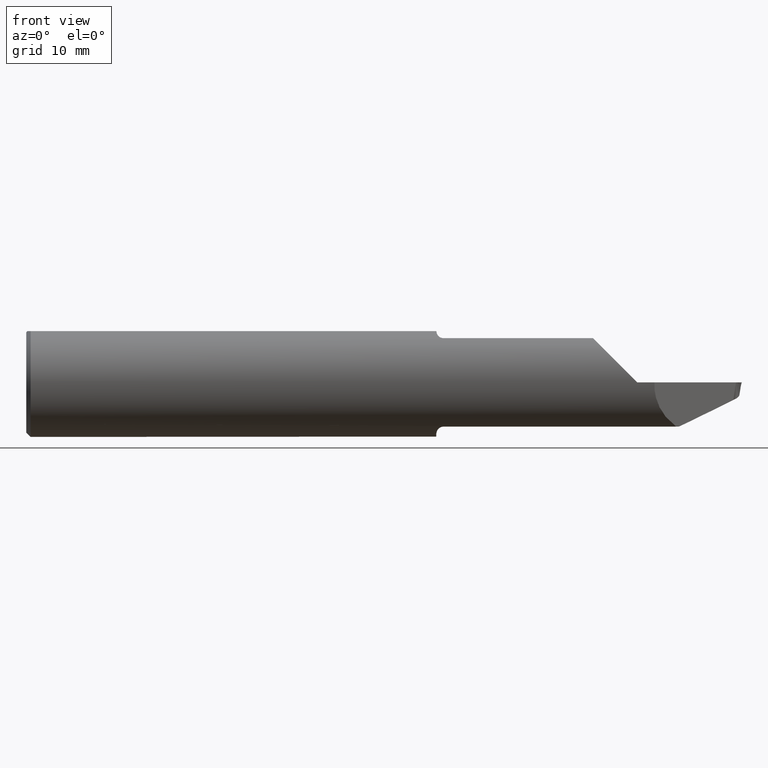
[diagram: clean part render]
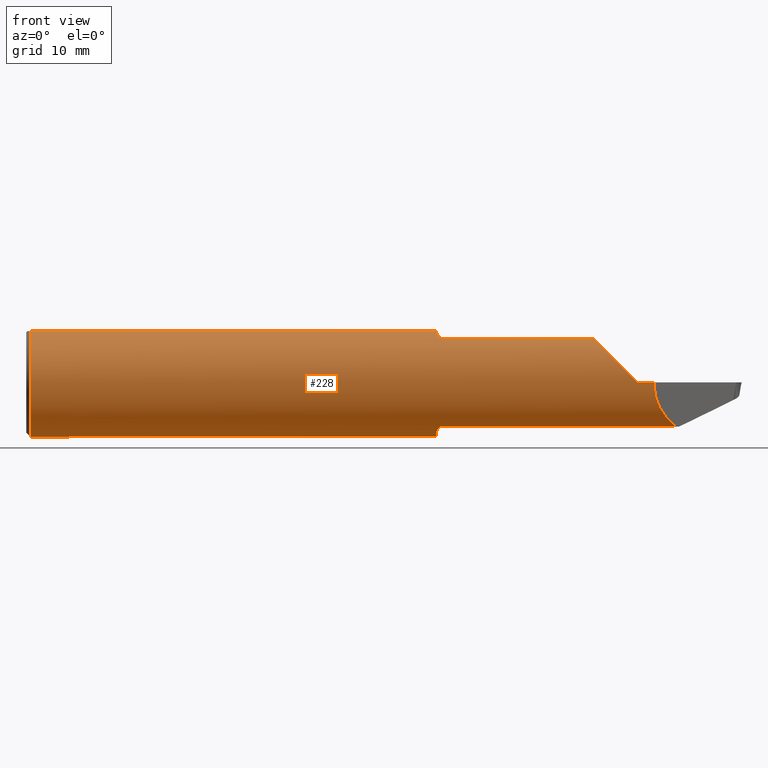
[diagram: same view with one face highlighted and labeled with its STEP entity id]
A machine part, front view. The second image highlights one B-rep face of the part: STEP entity #228.
In plain terms, the highlighted cylindrical surface (partial cylindrical patch) has radius 4.7587 mm, axis along (-1, -0, -0).
Its self-contained STEP definition (entity closure, byte-faithful):
#9 = CARTESIAN_POINT ( 'NONE',  ( 2.500000000000000000, 0.06325108694718227509, 0.1763499999999999512 ) ) ;
#12 = DIRECTION ( 'NONE',  ( 1.000000000000000000, -0.000000000000000000, -0.000000000000000000 ) ) ;
#30 = AXIS2_PLACEMENT_3D ( 'NONE', #675, #601, #384 ) ;
#35 = CARTESIAN_POINT ( 'NONE',  ( 2.231136885806333847, -0.1129504686584644618, -0.1494731217638583798 ) ) ;
#46 = VERTEX_POINT ( 'NONE', #677 ) ;
#57 = CARTESIAN_POINT ( 'NONE',  ( 1.415108789571853043, -0.09743537618374203957, 0.1601392975941936803 ) ) ;
#67 = VECTOR ( 'NONE', #587, 39.37007874015748143 ) ;
#76 = B_SPLINE_CURVE_WITH_KNOTS ( 'NONE', 3,
 ( #552, #922, #929, #282 ),
 .UNSPECIFIED., .F., .F.,
 ( 4, 4 ),
 ( 0.001081723733566297046, 0.001661700673542924455 ),
 .UNSPECIFIED. ) ;
#79 = LINE ( 'NONE', #517, #67 ) ;
#81 = AXIS2_PLACEMENT_3D ( 'NONE', #907, #849, #142 ) ;
#89 = CARTESIAN_POINT ( 'NONE',  ( 1.422232178970065153, -0.1076014420774722979, -0.1533875229558568920 ) ) ;
#100 = EDGE_CURVE ( 'NONE', #585, #694, #625, .T. ) ;
#116 = CARTESIAN_POINT ( 'NONE',  ( 1.411584626225753647, -0.08534999999999995368, -0.1667794951425384531 ) ) ;
#119 = CARTESIAN_POINT ( 'NONE',  ( 1.409400000000000652, -0.06325108694718373226, 0.1763499999999999512 ) ) ;
#122 = EDGE_CURVE ( 'NONE', #732, #830, #200, .T. ) ;
#125 = ORIENTED_EDGE ( 'NONE', *, *, #100, .T. ) ;
#129 = ORIENTED_EDGE ( 'NONE', *, *, #122, .F. ) ;
#130 = DIRECTION ( 'NONE',  ( 0.000000000000000000, 0.000000000000000000, 1.000000000000000000 ) ) ;
#131 = CARTESIAN_POINT ( 'NONE',  ( 1.434400000000000341, -0.1129504686584645173, -0.1494731217638587406 ) ) ;
#138 = ORIENTED_EDGE ( 'NONE', *, *, #254, .F. ) ;
#142 = DIRECTION ( 'NONE',  ( 0.000000000000000000, 0.000000000000000000, -1.000000000000000000 ) ) ;
#143 = VERTEX_POINT ( 'NONE', #285 ) ;
#145 = CARTESIAN_POINT ( 'NONE',  ( 1.427478532975328784, -0.1115153464561622898, 0.1505664708503516858 ) ) ;
#148 = ORIENTED_EDGE ( 'NONE', *, *, #427, .F. ) ;
#157 = LINE ( 'NONE', #9, #305 ) ;
#166 = EDGE_CURVE ( 'NONE', #676, #732, #167, .T. ) ;
#167 = B_SPLINE_CURVE_WITH_KNOTS ( 'NONE', 3,
 ( #214, #498, #57, #918, #710, #145, #351, #719 ),
 .UNSPECIFIED., .F., .F.,
 ( 4, 2, 2, 4 ),
 ( 0.0006141256517407885952, 0.001146034975910840623, 0.001411989637995865552, 0.001677944300080890915 ),
 .UNSPECIFIED. ) ;
#180 = CARTESIAN_POINT ( 'NONE',  ( 1.434400000000000341, -0.1129504686584644896, 0.1494731217638587406 ) ) ;
#186 = AXIS2_PLACEMENT_3D ( 'NONE', #925, #279, #564 ) ;
#187 = CARTESIAN_POINT ( 'NONE',  ( 0.01500000000000079568, 0.06325108694718227509, 0.1763499999999999512 ) ) ;
#197 = LINE ( 'NONE', #547, #729 ) ;
#200 = LINE ( 'NONE', #931, #735 ) ;
#211 = CARTESIAN_POINT ( 'NONE',  ( 1.950526878236143125, -0.1129504686584646977, 0.1494731217638582688 ) ) ;
#214 = CARTESIAN_POINT ( 'NONE',  ( 1.411584626225753647, -0.08534999999999996756, 0.1667794951425384531 ) ) ;
#222 = CARTESIAN_POINT ( 'NONE',  ( 1.430794666912733604, -0.1129504686584637818, -0.1494731217638588794 ) ) ;
#225 = CARTESIAN_POINT ( 'NONE',  ( 1.412986893946102995, -0.09146681443154554281, -0.1636491935950597221 ) ) ;
#228 = ADVANCED_FACE ( 'NONE', ( #267 ), #554, .T. ) ;
#241 = CARTESIAN_POINT ( 'NONE',  ( 1.411584626225753647, -0.08534999999999996756, 0.1667794951425384531 ) ) ;
#253 = CARTESIAN_POINT ( 'NONE',  ( 1.950526878236143125, -0.1129504686584646977, 0.1494731217638582688 ) ) ;
#254 = EDGE_CURVE ( 'NONE', #755, #46, #392, .T. ) ;
#267 = FACE_OUTER_BOUND ( 'NONE', #703, .T. ) ;
#279 = DIRECTION ( 'NONE',  ( 1.000000000000000000, 0.000000000000000000, 0.000000000000000000 ) ) ;
#282 = CARTESIAN_POINT ( 'NONE',  ( 1.409400000000000652, -0.06476652021089474021, -0.1757990908957487997 ) ) ;
#285 = CARTESIAN_POINT ( 'NONE',  ( 0.01500000000000016251, -0.06325108694718371838, 0.1763499999999999512 ) ) ;
#299 = CARTESIAN_POINT ( 'NONE',  ( 1.420183483830884663, -0.1051624633615434318, -0.1550820948667120391 ) ) ;
#305 = VECTOR ( 'NONE', #504, 39.37007874015748143 ) ;
#312 = CARTESIAN_POINT ( 'NONE',  ( 1.410075599206764618, -0.07876749217114902002, 0.1701481169429118478 ) ) ;
#313 = ORIENTED_EDGE ( 'NONE', *, *, #639, .F. ) ;
#319 = B_SPLINE_CURVE_WITH_KNOTS ( 'NONE', 3,
 ( #581, #222, #507, #89, #299, #809, #225, #737 ),
 .UNSPECIFIED., .F., .F.,
 ( 4, 2, 2, 4 ),
 ( 1.968246507242814800E-07, 0.0002705785518796170893, 0.0005409602791085099021, 0.001081723733566297046 ),
 .UNSPECIFIED. ) ;
#321 = EDGE_CURVE ( 'NONE', #394, #930, #157, .T. ) ;
#329 = EDGE_CURVE ( 'NONE', #694, #359, #79, .T. ) ;
#332 = CARTESIAN_POINT ( 'NONE',  ( 2.181791773352530495, -0.1606879575236963564, -0.1133999356533512415 ) ) ;
#345 = ORIENTED_EDGE ( 'NONE', *, *, #590, .F. ) ;
#348 = AXIS2_PLACEMENT_3D ( 'NONE', #662, #12, #829 ) ;
#349 = CARTESIAN_POINT ( 'NONE',  ( 1.409400000000000652, -0.06476652021089474021, -0.1757990908957487997 ) ) ;
#351 = CARTESIAN_POINT ( 'NONE',  ( 1.430786741880977653, -0.1129504686584685558, 0.1494731217638553267 ) ) ;
#359 = VERTEX_POINT ( 'NONE', #725 ) ;
#363 = B_SPLINE_CURVE_WITH_KNOTS ( 'NONE', 3,
 ( #465, #616, #312, #241 ),
 .UNSPECIFIED., .F., .F.,
 ( 4, 4 ),
 ( 4.102419206622085705E-05, 0.0006141256517407885952 ),
 .UNSPECIFIED. ) ;
#373 = ORIENTED_EDGE ( 'NONE', *, *, #663, .T. ) ;
#379 = EDGE_CURVE ( 'NONE', #893, #471, #319, .T. ) ;
#384 = DIRECTION ( 'NONE',  ( 0.000000000000000000, 0.000000000000000000, -1.000000000000000000 ) ) ;
#390 = EDGE_CURVE ( 'NONE', #143, #563, #760, .T. ) ;
#392 = CIRCLE ( 'NONE', #186, 0.1873499999999999888 ) ;
#394 = VERTEX_POINT ( 'NONE', #187 ) ;
#399 = ORIENTED_EDGE ( 'NONE', *, *, #626, .F. ) ;
#417 = ORIENTED_EDGE ( 'NONE', *, *, #763, .T. ) ;
#426 = DIRECTION ( 'NONE',  ( 1.000000000000000000, 0.000000000000000000, 0.000000000000000000 ) ) ;
#427 = EDGE_CURVE ( 'NONE', #46, #676, #363, .T. ) ;
#450 = CARTESIAN_POINT ( 'NONE',  ( 0.01500000000000079568, 0.000000000000000000, -0.1873499999999999888 ) ) ;
#465 = CARTESIAN_POINT ( 'NONE',  ( 1.409400000000000652, -0.06476652021089474021, 0.1757990908957487997 ) ) ;
#471 = VERTEX_POINT ( 'NONE', #116 ) ;
#487 = CARTESIAN_POINT ( 'NONE',  ( 2.155942986867625422, -0.1873500000000000165, -0.05983429283714666175 ) ) ;
#491 = CARTESIAN_POINT ( 'NONE',  ( 1.847270599853573003, -0.1129504686584644618, -0.1494731217638583798 ) ) ;
#498 = CARTESIAN_POINT ( 'NONE',  ( 1.412985190695229099, -0.09145938470227649164, 0.1636529957854461481 ) ) ;
#504 = DIRECTION ( 'NONE',  ( 1.000000000000000000, 0.000000000000000000, 0.000000000000000000 ) ) ;
#507 = CARTESIAN_POINT ( 'NONE',  ( 1.427464668066268372, -0.1115020549876341166, -0.1505758754555980294 ) ) ;
#517 = CARTESIAN_POINT ( 'NONE',  ( 2.500000000000000000, -0.1873499999999999888, -4.745349621061712245E-17 ) ) ;
#533 = ORIENTED_EDGE ( 'NONE', *, *, #566, .T. ) ;
#546 = CARTESIAN_POINT ( 'NONE',  ( 2.040165707162854059, -0.1873499999999999888, 0.05983429283714654379 ) ) ;
#547 = CARTESIAN_POINT ( 'NONE',  ( 2.500000000000000000, -0.06325108694718227509, 0.1763499999999999512 ) ) ;
#552 = CARTESIAN_POINT ( 'NONE',  ( 1.411584626225753647, -0.08534999999999995368, -0.1667794951425384531 ) ) ;
#554 = CYLINDRICAL_SURFACE ( 'NONE', #746, 0.1873499999999999888 ) ;
#563 = VERTEX_POINT ( 'NONE', #450 ) ;
#564 = DIRECTION ( 'NONE',  ( 0.000000000000000000, 0.000000000000000000, -1.000000000000000000 ) ) ;
#566 = EDGE_CURVE ( 'NONE', #563, #394, #605, .T. ) ;
#568 = CARTESIAN_POINT ( 'NONE',  ( 2.159006717911899020, -0.1873499999999999055, 5.335129386078614807E-17 ) ) ;
#574 = ORIENTED_EDGE ( 'NONE', *, *, #390, .T. ) ;
#581 = CARTESIAN_POINT ( 'NONE',  ( 1.434400000000000341, -0.1129504686584645173, -0.1494731217638587406 ) ) ;
#585 = VERTEX_POINT ( 'NONE', #35 ) ;
#587 = DIRECTION ( 'NONE',  ( -1.000000000000000000, -0.000000000000000000, -0.000000000000000000 ) ) ;
#590 = EDGE_CURVE ( 'NONE', #471, #660, #76, .T. ) ;
#601 = DIRECTION ( 'NONE',  ( 1.000000000000000000, -0.000000000000000000, -0.000000000000000000 ) ) ;
#605 = CIRCLE ( 'NONE', #30, 0.1873499999999999888 ) ;
#616 = CARTESIAN_POINT ( 'NONE',  ( 1.409400000000000208, -0.07190536322760358867, 0.1731690544253198794 ) ) ;
#625 =( BOUNDED_CURVE ( )  B_SPLINE_CURVE ( 3, ( #695, #332, #487, #704 ),
 .UNSPECIFIED., .F., .F. ) 
 B_SPLINE_CURVE_WITH_KNOTS ( ( 4, 4 ),
 ( 5.407212885630059418, 6.330897197100739504 ),
 .UNSPECIFIED. ) 
 CURVE ( )  GEOMETRIC_REPRESENTATION_ITEM ( )  RATIONAL_B_SPLINE_CURVE ( ( 1.000000000000000000, 0.9301554373620511962, 0.9301554373620511962, 1.000000000000000000 ) ) 
 REPRESENTATION_ITEM ( '' )  );
#626 = EDGE_CURVE ( 'NONE', #660, #930, #919, .T. ) ;
#639 = EDGE_CURVE ( 'NONE', #585, #893, #858, .T. ) ;
#660 = VERTEX_POINT ( 'NONE', #349 ) ;
#662 = CARTESIAN_POINT ( 'NONE',  ( 0.01500000000000079568, 0.000000000000000000, 0.000000000000000000 ) ) ;
#663 = EDGE_CURVE ( 'NONE', #755, #143, #197, .T. ) ;
#675 = CARTESIAN_POINT ( 'NONE',  ( 0.01500000000000079568, 0.000000000000000000, 0.000000000000000000 ) ) ;
#676 = VERTEX_POINT ( 'NONE', #784 ) ;
#677 = CARTESIAN_POINT ( 'NONE',  ( 1.409400000000000652, -0.06476652021089474021, 0.1757990908957487997 ) ) ;
#682 = VECTOR ( 'NONE', #911, 39.37007874015748143 ) ;
#687 = CARTESIAN_POINT ( 'NONE',  ( 1.986600064346650152, -0.1606879575236964119, 0.1133999356533509778 ) ) ;
#694 = VERTEX_POINT ( 'NONE', #568 ) ;
#695 = CARTESIAN_POINT ( 'NONE',  ( 2.231136885806333847, -0.1129504686584644618, -0.1494731217638583798 ) ) ;
#703 = EDGE_LOOP ( 'NONE', ( #313, #125, #810, #417, #129, #785, #148, #138, #373, #574, #533, #850, #399, #345, #868 ) ) ;
#704 = CARTESIAN_POINT ( 'NONE',  ( 2.159006717911899020, -0.1873499999999999055, 5.335129386078614807E-17 ) ) ;
#710 = CARTESIAN_POINT ( 'NONE',  ( 1.422194310168976905, -0.1075702432047982299, 0.1534098348099895703 ) ) ;
#719 = CARTESIAN_POINT ( 'NONE',  ( 1.434400000000000341, -0.1129504686584644896, 0.1494731217638587406 ) ) ;
#725 = CARTESIAN_POINT ( 'NONE',  ( 2.100000000000000089, -0.1873499999999999888, -4.745349621061712245E-17 ) ) ;
#729 = VECTOR ( 'NONE', #789, 39.37007874015748143 ) ;
#732 = VERTEX_POINT ( 'NONE', #180 ) ;
#734 = CARTESIAN_POINT ( 'NONE',  ( 1.409400000000000652, 0.06325108694718227509, 0.1763499999999999512 ) ) ;
#735 = VECTOR ( 'NONE', #426, 39.37007874015748143 ) ;
#737 = CARTESIAN_POINT ( 'NONE',  ( 1.411584626225753647, -0.08534999999999995368, -0.1667794951425384531 ) ) ;
#746 = AXIS2_PLACEMENT_3D ( 'NONE', #851, #780, #130 ) ;
#755 = VERTEX_POINT ( 'NONE', #119 ) ;
#760 = CIRCLE ( 'NONE', #348, 0.1873499999999999888 ) ;
#763 = EDGE_CURVE ( 'NONE', #359, #830, #825, .T. ) ;
#780 = DIRECTION ( 'NONE',  ( -1.000000000000000000, -0.000000000000000000, -0.000000000000000000 ) ) ;
#784 = CARTESIAN_POINT ( 'NONE',  ( 1.411584626225753647, -0.08534999999999996756, 0.1667794951425384531 ) ) ;
#785 = ORIENTED_EDGE ( 'NONE', *, *, #166, .F. ) ;
#789 = DIRECTION ( 'NONE',  ( -1.000000000000000000, -0.000000000000000000, -0.000000000000000000 ) ) ;
#809 = CARTESIAN_POINT ( 'NONE',  ( 1.415089989136574244, -0.09739335834436035899, -0.1601651199371061651 ) ) ;
#810 = ORIENTED_EDGE ( 'NONE', *, *, #329, .T. ) ;
#825 =( BOUNDED_CURVE ( )  B_SPLINE_CURVE ( 3, ( #915, #546, #687, #253 ),
 .UNSPECIFIED., .F., .F. ) 
 B_SPLINE_CURVE_WITH_KNOTS ( ( 4, 4 ),
 ( 4.712388980384689674, 5.636073291855367984 ),
 .UNSPECIFIED. ) 
 CURVE ( )  GEOMETRIC_REPRESENTATION_ITEM ( )  RATIONAL_B_SPLINE_CURVE ( ( 1.000000000000000000, 0.9301554373620515292, 0.9301554373620515292, 1.000000000000000000 ) ) 
 REPRESENTATION_ITEM ( '' )  );
#829 = DIRECTION ( 'NONE',  ( 0.000000000000000000, 0.000000000000000000, -1.000000000000000000 ) ) ;
#830 = VERTEX_POINT ( 'NONE', #211 ) ;
#849 = DIRECTION ( 'NONE',  ( 1.000000000000000000, 0.000000000000000000, 0.000000000000000000 ) ) ;
#850 = ORIENTED_EDGE ( 'NONE', *, *, #321, .T. ) ;
#851 = CARTESIAN_POINT ( 'NONE',  ( 2.500000000000000000, 0.000000000000000000, 0.000000000000000000 ) ) ;
#858 = LINE ( 'NONE', #491, #682 ) ;
#868 = ORIENTED_EDGE ( 'NONE', *, *, #379, .F. ) ;
#893 = VERTEX_POINT ( 'NONE', #131 ) ;
#907 = CARTESIAN_POINT ( 'NONE',  ( 1.409400000000000652, 0.000000000000000000, 0.000000000000000000 ) ) ;
#911 = DIRECTION ( 'NONE',  ( -1.000000000000000000, -0.000000000000000000, -0.000000000000000000 ) ) ;
#915 = CARTESIAN_POINT ( 'NONE',  ( 2.100000000000000089, -0.1873499999999999888, -4.745349621061712245E-17 ) ) ;
#918 = CARTESIAN_POINT ( 'NONE',  ( 1.420209059610950897, -0.1051947344225445669, 0.1550601383860016891 ) ) ;
#919 = CIRCLE ( 'NONE', #81, 0.1873499999999999888 ) ;
#922 = CARTESIAN_POINT ( 'NONE',  ( 1.410080673000416507, -0.07878962450278774454, -0.1701367906434542998 ) ) ;
#925 = CARTESIAN_POINT ( 'NONE',  ( 1.409400000000000652, 0.000000000000000000, 0.000000000000000000 ) ) ;
#929 = CARTESIAN_POINT ( 'NONE',  ( 1.409400000000000652, -0.07189143372580403257, -0.1731741862229601581 ) ) ;
#930 = VERTEX_POINT ( 'NONE', #734 ) ;
#931 = CARTESIAN_POINT ( 'NONE',  ( 1.847270599853573003, -0.1129504686584644618, 0.1494731217638583798 ) ) ;